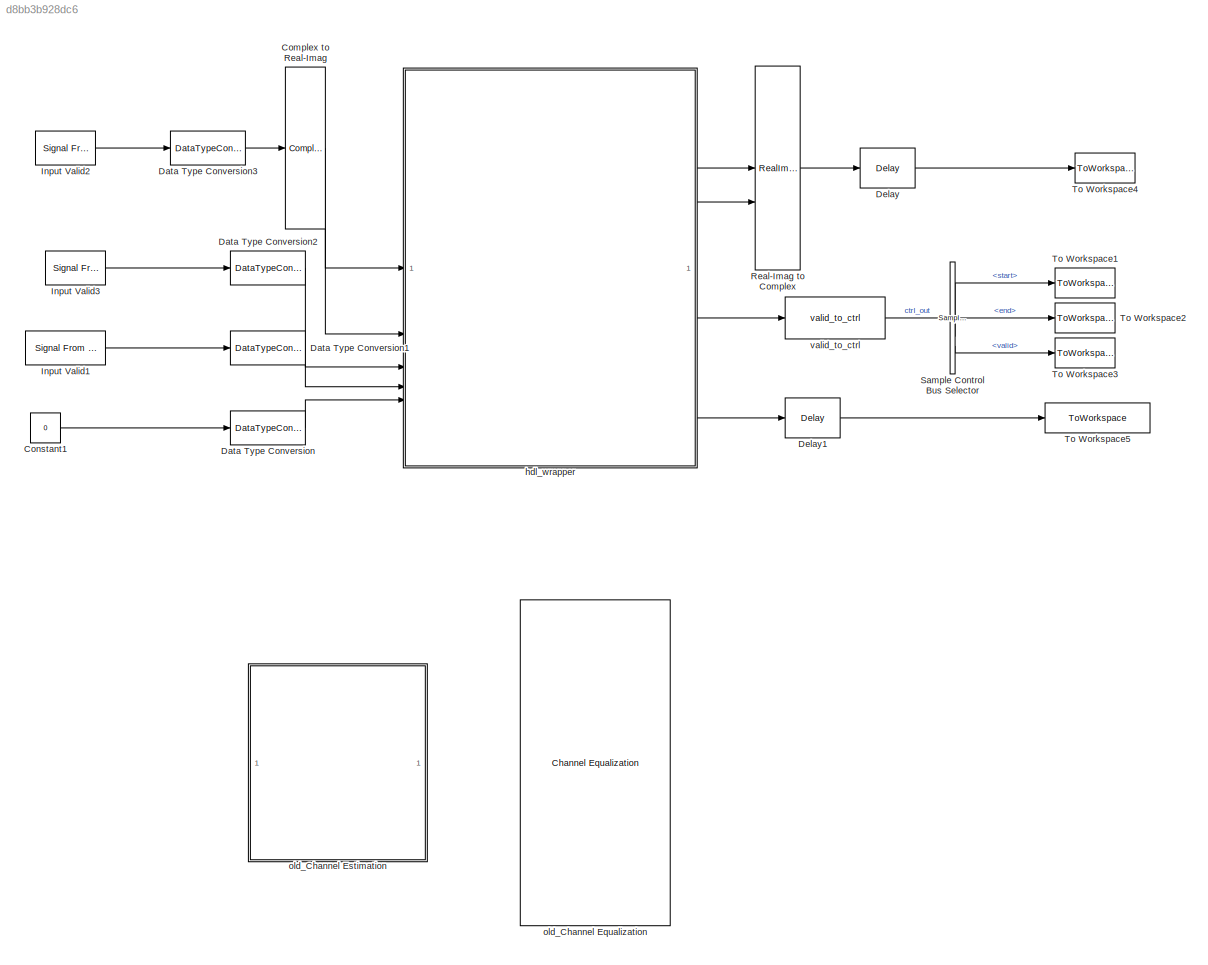
MODEL slx_d8bb3b928dc6
KIND model
CONFIG AbsTol = auto
CONFIG EnableMultiTasking = off
CONFIG FixedStep = auto
CONFIG MaxStep = auto
CONFIG MinStep = auto
CONFIG RelTol = 1e-3
CONFIG SampleTimeConstraint = Unconstrained
CONFIG SolverName = FixedStepDiscrete
CONFIG StartTime = 0.0
CONFIG StopTime = stopTime
BLOCK [ComplexToRealImag] Complex to Real-Imag
BLOCK [Constant] Constant1
  OutDataTypeStr = boolean
  SampleTime = -1
  Value = 0
BLOCK [DataTypeConversion] Data Type Conversion
  OutDataTypeStr = boolean
  RndMeth = Floor
  SaturateOnIntegerOverflow = off
BLOCK [DataTypeConversion] Data Type Conversion1
  OutDataTypeStr = boolean
  RndMeth = Floor
  SaturateOnIntegerOverflow = off
BLOCK [DataTypeConversion] Data Type Conversion2
  OutDataTypeStr = boolean
  RndMeth = Floor
  SaturateOnIntegerOverflow = off
BLOCK [DataTypeConversion] Data Type Conversion3
  OutDataTypeStr = CONST.rxOFDMDemodDataType
  RndMeth = Floor
  SaturateOnIntegerOverflow = off
BLOCK [Delay] Delay
  DelayLength = 1
  InitialCondition = 0
  InputPortMap = u0
  UseCircularBuffer = on
  UserDataPersistent = on
BLOCK [Delay] Delay1
  DelayLength = 1
  InitialCondition = 0
  InputPortMap = u0
  UseCircularBuffer = on
  UserDataPersistent = on
BLOCK [Reference] Input Valid1  REF=dspsrcs4/Signal From
Workspace
  SourceBlock = dspsrcs4/Signal From\nWorkspace
  SourceType = Signal From Workspace
BLOCK [Reference] Input Valid2  REF=dspsrcs4/Signal From
Workspace
  SourceBlock = dspsrcs4/Signal From\nWorkspace
  SourceType = Signal From Workspace
BLOCK [Reference] Input Valid3  REF=dspsrcs4/Signal From
Workspace
  SourceBlock = dspsrcs4/Signal From\nWorkspace
  SourceType = Signal From Workspace
BLOCK [RealImagToComplex] Real-Imag to Complex
BLOCK [Reference] Sample Control Bus Selector  REF=whdlutilities/Sample Control
Bus Selector
  SourceBlock = whdlutilities/Sample Control\nBus Selector
BLOCK [ToWorkspace] To Workspace1
  MaxDataPoints = inf
  SampleTime = 1/CONST.fPHY
  Save2DSignal = 2-D array (concatenate along first dimension)
  VariableName = startOut
BLOCK [ToWorkspace] To Workspace2
  MaxDataPoints = inf
  SampleTime = 1/CONST.fPHY
  Save2DSignal = 2-D array (concatenate along first dimension)
  VariableName = endOut
BLOCK [ToWorkspace] To Workspace3
  MaxDataPoints = inf
  SampleTime = 1/CONST.fPHY
  Save2DSignal = 2-D array (concatenate along first dimension)
  VariableName = validOut
BLOCK [ToWorkspace] To Workspace4
  MaxDataPoints = inf
  SampleTime = 1/CONST.fPHY
  Save2DSignal = 2-D array (concatenate along first dimension)
  VariableName = dataOut
BLOCK [ToWorkspace] To Workspace5
  MaxDataPoints = inf
  SampleTime = 1/CONST.fPHY
  Save2DSignal = 2-D array (concatenate along first dimension)
  VariableName = channelEstOut
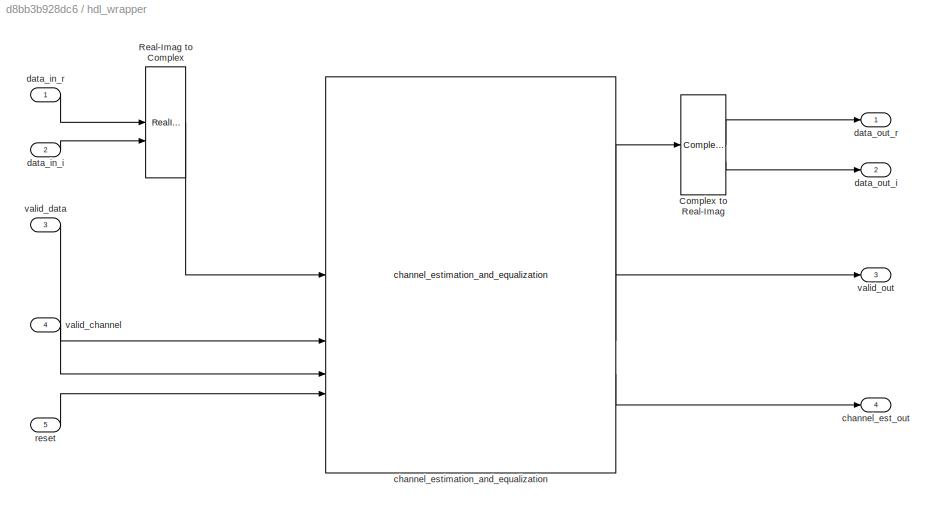
BLOCK [SubSystem] hdl_wrapper
  TreatAsAtomicUnit = on
BLOCK [ComplexToRealImag] hdl_wrapper/Complex to Real-Imag
BLOCK [RealImagToComplex] hdl_wrapper/Real-Imag to Complex
BLOCK [Outport] hdl_wrapper/channel_est_out
  Port = 4
BLOCK [Reference] hdl_wrapper/channel_estimation_and_equalization  REF=HDL_ieee_8021513/channel_estimation_and_equalization
  SourceBlock = HDL_ieee_8021513/channel_estimation_and_equalization
  SourceProductName = HDL IEEE 8021513
  SourceType = SubSystem
BLOCK [Inport] hdl_wrapper/data_in_i
  Port = 2
BLOCK [Inport] hdl_wrapper/data_in_r
BLOCK [Outport] hdl_wrapper/data_out_i
  Port = 2
BLOCK [Outport] hdl_wrapper/data_out_r
BLOCK [Inport] hdl_wrapper/reset
  Port = 5
BLOCK [Inport] hdl_wrapper/valid_channel
  Port = 4
BLOCK [Inport] hdl_wrapper/valid_data
  Port = 3
BLOCK [Outport] hdl_wrapper/valid_out
  Port = 3
BLOCK [Reference] old_Channel Equalization  REF=HDL_ieee_8021513/channel_estimation_and_equalization/Channel Equalization
  Commented = on
  SourceBlock = HDL_ieee_8021513/channel_estimation_and_equalization/Channel Equalization
  SourceProductName = HDL IEEE 8021513
  SourceType = SubSystem
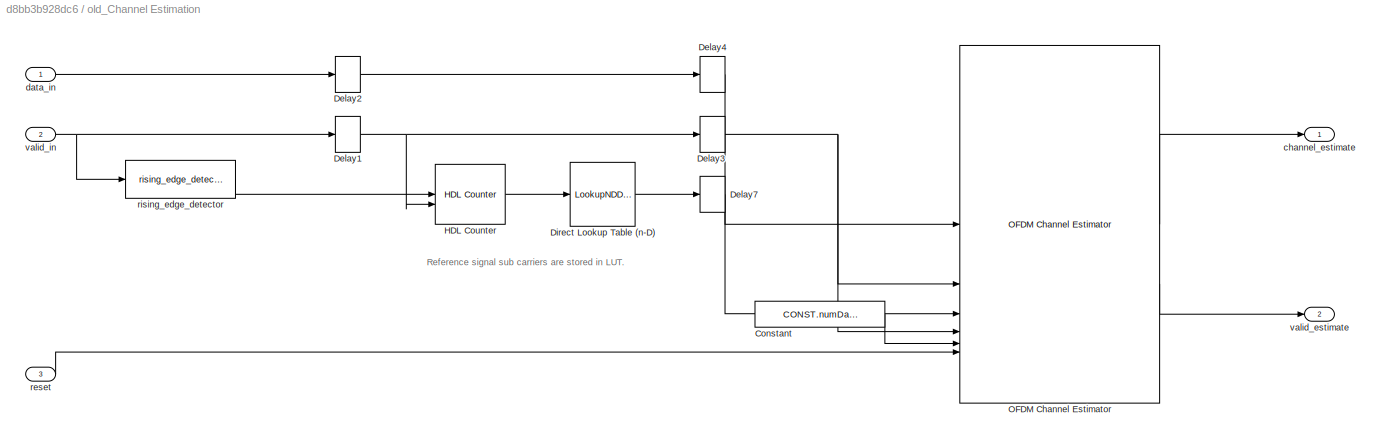
BLOCK [SubSystem] old_Channel Estimation
  Commented = on
BLOCK [Constant] old_Channel Estimation/Constant
  OutDataTypeStr = fixdt(0,nextpow2(CONST.numDataCarriers),0)
  SampleTime = -1
  Value = CONST.numDataCarriers
BLOCK [Delay] old_Channel Estimation/Delay1
  DelayLength = 1
  InitialCondition = 0
  InputPortMap = u0
BLOCK [Delay] old_Channel Estimation/Delay2
  DelayLength = 1
  InitialCondition = 0
  InputPortMap = u0
BLOCK [Delay] old_Channel Estimation/Delay3
  DelayLength = 1
  InitialCondition = 0
  InputPortMap = u0
BLOCK [Delay] old_Channel Estimation/Delay4
  DelayLength = 1
  InitialCondition = 0
  InputPortMap = u0
BLOCK [Delay] old_Channel Estimation/Delay7
  DelayLength = 1
  InitialCondition = 0
  InputPortMap = u0
BLOCK [LookupNDDirect] old_Channel Estimation/Direct Lookup Table (n-D)
  DiagnosticForOutOfRangeInput = Error
  NumberOfTableDimensions = 1
  RemoveProtectionInput = on
  Table = fi(CONST.channelEstReference, 1, CONST.rxChannelEstReferenceWordLength, CONST.rxChannelEstReferenceFractionLength)
  TableDataTypeStr = fixdt(1,16,12)
BLOCK [Reference] old_Channel Estimation/HDL Counter  REF=hdlsllib/Sources/HDL Counter
  SourceBlock = hdlsllib/Sources/HDL Counter
  SourceType = HDL Counter
BLOCK [Reference] old_Channel Estimation/OFDM Channel Estimator  REF=whdlmod/OFDM Channel Estimator
  SourceBlock = whdlmod/OFDM Channel Estimator
  SourceType = OFDM Channel Estimator
BLOCK [Outport] old_Channel Estimation/channel_estimate
BLOCK [Inport] old_Channel Estimation/data_in
BLOCK [Inport] old_Channel Estimation/reset
  Port = 3
BLOCK [Reference] old_Channel Estimation/rising_edge_detector  REF=HDL_ieee_8021513/rising_edge_detector
  SourceBlock = HDL_ieee_8021513/rising_edge_detector
  SourceProductName = HDL IEEE 8021513
  SourceType = SubSystem
BLOCK [Outport] old_Channel Estimation/valid_estimate
  Port = 2
BLOCK [Inport] old_Channel Estimation/valid_in
  Port = 2
BLOCK [Reference] valid_to_ctrl  REF=HDL_ieee_8021513/valid_to_ctrl
  SourceBlock = HDL_ieee_8021513/valid_to_ctrl
  SourceProductName = HDL IEEE 8021513
  SourceType = SubSystem
ANNOTATION old_Channel Estimation: Reference signal sub carriers are stored in LUT.
LINE Complex to Real-Imag:1 -> hdl_wrapper:1
LINE Complex to Real-Imag:2 -> hdl_wrapper:2
LINE Constant1:1 -> Data Type Conversion:1
LINE Data Type Conversion1:1 -> hdl_wrapper:4
LINE Data Type Conversion2:1 -> hdl_wrapper:3
LINE Data Type Conversion3:1 -> Complex to Real-Imag:1
LINE Data Type Conversion:1 -> hdl_wrapper:5
LINE Delay1:1 -> To Workspace5:1
LINE Delay:1 -> To Workspace4:1
LINE Input Valid1:1 -> Data Type Conversion1:1
LINE Input Valid2:1 -> Data Type Conversion3:1
LINE Input Valid3:1 -> Data Type Conversion2:1
LINE Real-Imag to Complex:1 -> Delay:1
LINE Sample Control Bus Selector:1 -> To Workspace1:1
LINE Sample Control Bus Selector:2 -> To Workspace2:1
LINE Sample Control Bus Selector:3 -> To Workspace3:1
LINE hdl_wrapper/Complex to Real-Imag:1 -> hdl_wrapper/data_out_r:1
LINE hdl_wrapper/Complex to Real-Imag:2 -> hdl_wrapper/data_out_i:1
LINE hdl_wrapper/Real-Imag to Complex:1 -> hdl_wrapper/channel_estimation_and_equalization:1
LINE hdl_wrapper/channel_estimation_and_equalization:1 -> hdl_wrapper/Complex to Real-Imag:1
LINE hdl_wrapper/channel_estimation_and_equalization:2 -> hdl_wrapper/valid_out:1
LINE hdl_wrapper/channel_estimation_and_equalization:3 -> hdl_wrapper/channel_est_out:1
LINE hdl_wrapper/data_in_i:1 -> hdl_wrapper/Real-Imag to Complex:2
LINE hdl_wrapper/data_in_r:1 -> hdl_wrapper/Real-Imag to Complex:1
LINE hdl_wrapper/reset:1 -> hdl_wrapper/channel_estimation_and_equalization:4
LINE hdl_wrapper/valid_channel:1 -> hdl_wrapper/channel_estimation_and_equalization:3
LINE hdl_wrapper/valid_data:1 -> hdl_wrapper/channel_estimation_and_equalization:2
LINE hdl_wrapper:1 -> Real-Imag to Complex:1
LINE hdl_wrapper:2 -> Real-Imag to Complex:2
LINE hdl_wrapper:3 -> valid_to_ctrl:1
LINE hdl_wrapper:4 -> Delay1:1
LINE old_Channel Estimation/Constant:1 -> old_Channel Estimation/OFDM Channel Estimator:5
NET old_Channel Estimation/Delay1:1 -> old_Channel Estimation/Delay3:1, old_Channel Estimation/HDL Counter:2
LINE old_Channel Estimation/Delay2:1 -> old_Channel Estimation/Delay4:1
NET old_Channel Estimation/Delay3:1 -> old_Channel Estimation/OFDM Channel Estimator:2, old_Channel Estimation/OFDM Channel Estimator:4
LINE old_Channel Estimation/Delay4:1 -> old_Channel Estimation/OFDM Channel Estimator:1
LINE old_Channel Estimation/Delay7:1 -> old_Channel Estimation/OFDM Channel Estimator:3
LINE old_Channel Estimation/Direct Lookup Table (n-D):1 -> old_Channel Estimation/Delay7:1
LINE old_Channel Estimation/HDL Counter:1 -> old_Channel Estimation/Direct Lookup Table (n-D):1
LINE old_Channel Estimation/OFDM Channel Estimator:1 -> old_Channel Estimation/channel_estimate:1
LINE old_Channel Estimation/OFDM Channel Estimator:2 -> old_Channel Estimation/valid_estimate:1
LINE old_Channel Estimation/data_in:1 -> old_Channel Estimation/Delay2:1
LINE old_Channel Estimation/reset:1 -> old_Channel Estimation/OFDM Channel Estimator:6
LINE old_Channel Estimation/rising_edge_detector:1 -> old_Channel Estimation/HDL Counter:1
NET old_Channel Estimation/valid_in:1 -> old_Channel Estimation/Delay1:1, old_Channel Estimation/rising_edge_detector:1
LINE valid_to_ctrl:1 -> Sample Control Bus Selector:1
note: NET lines group one-source signal fan-out (src -> all destinations, sorted); 1:1 wires keep LINE
